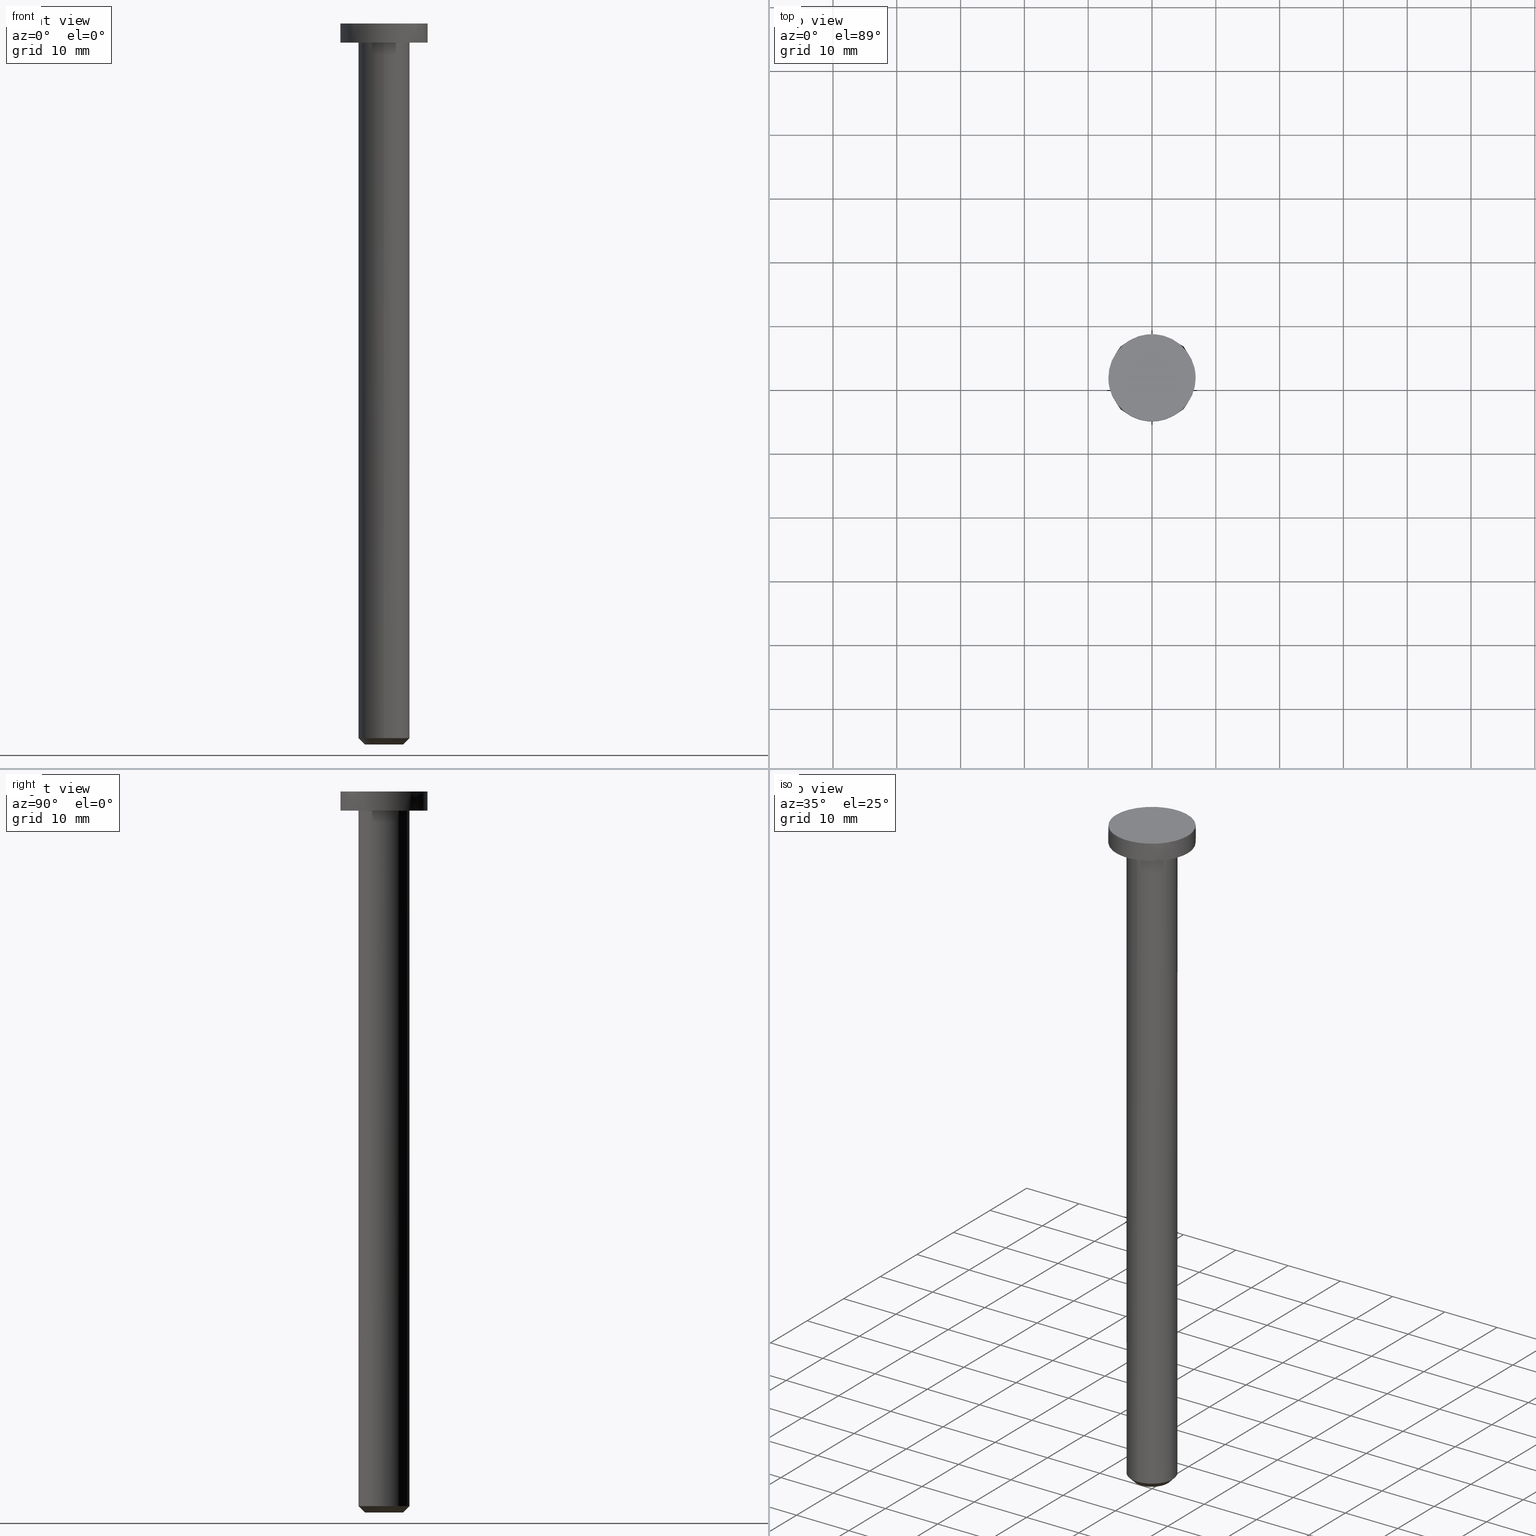
[diagram: canonical four-view strip — front | top / right | iso, engineering-drawing reading convention]
A machine part, canonical four-view strip (front | top / right | iso — engineering-drawing reading convention). The complete STEP part file that produces these views, byte-faithful:
ISO-10303-21;
HEADER;
/****************************************************************
 * Generated by software with PDE/Lib inside                    *
 * PDElib Version 4.4.1-0003, patched  Thursday August 19 11:58 *
 * International Technegroup Inc. (www.iti-oh.com)              *
 ****************************************************************/
FILE_DESCRIPTION((''),'2;1');
FILE_NAME('','2005-04-20T08:42:09',(''),(''),'','CADfix','');
FILE_SCHEMA(('AUTOMOTIVE_DESIGN'));
ENDSEC;
DATA;
#5=APPLICATION_CONTEXT('automotive design');
#6=APPLICATION_PROTOCOL_DEFINITION('Draft International Standard','automotive_design',1998,#5);
#7=PRODUCT_CONTEXT('None',#5,'mechanical');
#8=PRODUCT('shaft','','None',(#7));
#9=PRODUCT_RELATED_PRODUCT_CATEGORY('part','description',(#8));
#10=PRODUCT_DEFINITION_FORMATION('None','None',#8);
#11=PRODUCT_DEFINITION_CONTEXT('part definition',#5,'design');
#12=PRODUCT_DEFINITION('None','None',#10,#11);
#18=(NAMED_UNIT(*)PLANE_ANGLE_UNIT()SI_UNIT($,.RADIAN.));
#19=DIMENSIONAL_EXPONENTS(0.0,0.0,0.0,0.0,0.0,0.0,0.0);
#20=PLANE_ANGLE_MEASURE_WITH_UNIT(PLANE_ANGLE_MEASURE(0.017453292500000),#18);
#24=(CONVERSION_BASED_UNIT('DEGREE',#20)NAMED_UNIT(#19)PLANE_ANGLE_UNIT());
#28=(NAMED_UNIT(*)SI_UNIT($,.STERADIAN.)SOLID_ANGLE_UNIT());
#32=(LENGTH_UNIT()NAMED_UNIT(*)SI_UNIT(.MILLI.,.METRE.));
#34=UNCERTAINTY_MEASURE_WITH_UNIT(LENGTH_MEASURE(0.001000000000000),#32,'DISTANCE_ACCURACY_VALUE','');
#36=(GEOMETRIC_REPRESENTATION_CONTEXT(3)GLOBAL_UNCERTAINTY_ASSIGNED_CONTEXT((#34))GLOBAL_UNIT_ASSIGNED_CONTEXT((#24,#28,#32))REPRESENTATION_CONTEXT('None','None'));
#37=AXIS2_PLACEMENT_3D('',#38,#39,#40);
#38=CARTESIAN_POINT('',(0.0,0.0,0.0));
#39=DIRECTION('',(0.0,0.0,1.0));
#40=DIRECTION('',(1.0,0.0,0.0));
#41=ADVANCED_BREP_SHAPE_REPRESENTATION('',(#37,#544),#36);
#42=PRODUCT_DEFINITION_SHAPE('','',#12);
#43=SHAPE_DEFINITION_REPRESENTATION(#42,#41);
#44=CARTESIAN_POINT('',(-2.898299005706309,0.671183934195250,-0.025000000000000));
#45=CARTESIAN_POINT('',(-2.977968336595556,0.327156714922717,-0.025000000000000));
#46=CARTESIAN_POINT('',(-2.974886721115909,-0.025961443107662,-0.025000000000000));
#47=CARTESIAN_POINT('',(-2.948925278008246,-3.000848164223570,-0.025000000000000));
#48=CARTESIAN_POINT('',(0.025961443107662,-2.974886721115909,-0.025000000000000));
#49=CARTESIAN_POINT('',(3.000848164223570,-2.948925278008246,-0.025000000000000));
#50=CARTESIAN_POINT('',(2.974886721115909,0.025961443107662,-0.025000000000000));
#51=CARTESIAN_POINT('',(2.948925278008246,3.000848164223570,-0.025000000000000));
#52=CARTESIAN_POINT('',(-0.025961443107662,2.974886721115909,-0.025000000000000));
#53=CARTESIAN_POINT('',(-3.921836952889566,0.908213386586471,1.025625000000000));
#54=CARTESIAN_POINT('',(-4.029641608405877,0.442692521180088,1.025625000000000));
#55=CARTESIAN_POINT('',(-4.025471716535202,-0.035129759465641,1.025625000000000));
#56=CARTESIAN_POINT('',(-3.990341957069561,-4.060601476000842,1.025625000000000));
#57=CARTESIAN_POINT('',(0.035129759465641,-4.025471716535202,1.025625000000000));
#58=CARTESIAN_POINT('',(4.060601476000842,-3.990341957069561,1.025625000000000));
#59=CARTESIAN_POINT('',(4.025471716535202,0.035129759465641,1.025625000000000));
#60=CARTESIAN_POINT('',(3.990341957069561,4.060601476000842,1.025625000000000));
#61=CARTESIAN_POINT('',(-0.035129759465641,4.025471716535202,1.025625000000000));
#69=(BOUNDED_SURFACE()B_SPLINE_SURFACE(2,1,((#44,#53),(#45,#54),(#46,#55),(#47,#56),(#48,#57),(#49,#58),(#50,#59),(#51,#60),(#52,#61)),.UNSPECIFIED.,.F.,.F.,.U.)B_SPLINE_SURFACE_WITH_KNOTS((3,2,2,2,3),(2,2),(0.0,1.067179822098042,7.737053710210802,14.406927598323559,21.076801486436320),(0.0,1.0),.UNSPECIFIED.)GEOMETRIC_REPRESENTATION_ITEM()RATIONAL_B_SPLINE_SURFACE(((0.921270302782944,0.921270302782944),(0.953137084989848,0.953137084989848),(1.0,1.0),(0.707106781186548,0.707106781186548),(1.0,1.0),(0.707106781186548,0.707106781186548),(1.0,1.0),(0.707106781186548,0.707106781186548),(1.0,1.0)))REPRESENTATION_ITEM('')SURFACE());
#70=CARTESIAN_POINT('',(-3.896872612602162,0.902432181418461,1.000000000113562));
#71=VERTEX_POINT('',#70);
#72=CARTESIAN_POINT('',(-4.0,0.0,1.0));
#73=VERTEX_POINT('',#72);
#74=CARTESIAN_POINT('',(-3.896872612602162,0.902432181418461,1.000000000113562));
#75=CARTESIAN_POINT('',(-4.000000000000001,0.457108643719572,1.0));
#76=CARTESIAN_POINT('',(-4.0,0.0,1.0));
#84=(BOUNDED_CURVE()B_SPLINE_CURVE(2,(#74,#75,#76),.UNSPECIFIED.,.F.,.U.)B_SPLINE_CURVE_WITH_KNOTS((3,3),(0.961422971703980,1.0),.UNSPECIFIED.)CURVE()GEOMETRIC_REPRESENTATION_ITEM()RATIONAL_B_SPLINE_CURVE((0.923556557312165,0.954804200040484,1.0))REPRESENTATION_ITEM(''));
#85=EDGE_CURVE('',#71,#73,#84,.T.);
#86=ORIENTED_EDGE('',*,*,#85,.F.);
#87=CARTESIAN_POINT('',(-2.922654459445184,0.676824136111415,8.963145E-011));
#88=VERTEX_POINT('',#87);
#89=CARTESIAN_POINT('',(-2.922654459445184,0.676824136111415,8.963145E-011));
#90=CARTESIAN_POINT('',(-3.896872612602162,0.902432181418461,1.000000000113562));
#91=QUASI_UNIFORM_CURVE('',1,(#89,#90),.UNSPECIFIED.,.F.,.U.);
#92=EDGE_CURVE('',#88,#71,#91,.T.);
#93=ORIENTED_EDGE('',*,*,#92,.F.);
#94=CARTESIAN_POINT('',(-3.0,0.0,0.0));
#95=VERTEX_POINT('',#94);
#96=CARTESIAN_POINT('',(-3.0,0.0,0.0));
#97=CARTESIAN_POINT('',(-3.0,0.342831482838098,0.0));
#98=CARTESIAN_POINT('',(-2.922654459445184,0.676824136111415,8.963145E-011));
#106=(BOUNDED_CURVE()B_SPLINE_CURVE(2,(#96,#97,#98),.UNSPECIFIED.,.F.,.U.)B_SPLINE_CURVE_WITH_KNOTS((3,3),(0.0,0.038577028301222),.UNSPECIFIED.)CURVE()GEOMETRIC_REPRESENTATION_ITEM()RATIONAL_B_SPLINE_CURVE((1.0,0.954804200034390,0.923556557303737))REPRESENTATION_ITEM(''));
#107=EDGE_CURVE('',#95,#88,#106,.T.);
#108=ORIENTED_EDGE('',*,*,#107,.F.);
#109=CARTESIAN_POINT('',(3.0,0.0,0.0));
#110=VERTEX_POINT('',#109);
#111=CARTESIAN_POINT('',(3.0,0.0,0.0));
#112=CARTESIAN_POINT('',(3.0,-3.0,0.0));
#113=CARTESIAN_POINT('',(0.0,-3.0,0.0));
#114=CARTESIAN_POINT('',(-3.0,-3.0,0.0));
#115=CARTESIAN_POINT('',(-3.0,0.0,0.0));
#123=(BOUNDED_CURVE()B_SPLINE_CURVE(2,(#111,#112,#113,#114,#115),.UNSPECIFIED.,.F.,.U.)B_SPLINE_CURVE_WITH_KNOTS((3,2,3),(0.500000000000000,0.750000000000000,1.0),.UNSPECIFIED.)CURVE()GEOMETRIC_REPRESENTATION_ITEM()RATIONAL_B_SPLINE_CURVE((1.0,0.707106781186548,1.0,0.707106781186548,1.0))REPRESENTATION_ITEM(''));
#124=EDGE_CURVE('',#110,#95,#123,.T.);
#125=ORIENTED_EDGE('',*,*,#124,.F.);
#126=CARTESIAN_POINT('',(-0.026179607981349,2.999885769381246,2.016954E-010));
#127=VERTEX_POINT('',#126);
#128=CARTESIAN_POINT('',(-0.026179607981348,2.999885769381246,2.016954E-010));
#129=CARTESIAN_POINT('',(-0.013090053946656,3.000000000000000,0.0));
#130=CARTESIAN_POINT('',(0.0,3.0,0.0));
#131=CARTESIAN_POINT('',(3.0,3.0,0.0));
#132=CARTESIAN_POINT('',(3.0,0.0,0.0));
#140=(BOUNDED_CURVE()B_SPLINE_CURVE(2,(#128,#129,#130,#131,#132),.UNSPECIFIED.,.F.,.U.)B_SPLINE_CURVE_WITH_KNOTS((3,2,3),(0.248460105490688,0.250000000000000,0.500000000000000),.UNSPECIFIED.)CURVE()GEOMETRIC_REPRESENTATION_ITEM()RATIONAL_B_SPLINE_CURVE((0.996414027696968,0.998195901362137,1.0,0.707106781186548,1.0))REPRESENTATION_ITEM(''));
#141=EDGE_CURVE('',#127,#110,#140,.T.);
#142=ORIENTED_EDGE('',*,*,#141,.F.);
#143=CARTESIAN_POINT('',(-0.034906143808473,3.999847692487240,1.000000000246385));
#144=VERTEX_POINT('',#143);
#145=CARTESIAN_POINT('',(-0.026179607981349,2.999885769381246,2.016954E-010));
#146=CARTESIAN_POINT('',(-0.034906143808473,3.999847692487240,1.000000000246385));
#147=QUASI_UNIFORM_CURVE('',1,(#145,#146),.UNSPECIFIED.,.F.,.U.);
#148=EDGE_CURVE('',#127,#144,#147,.T.);
#149=ORIENTED_EDGE('',*,*,#148,.T.);
#150=CARTESIAN_POINT('',(0.496512008596728,3.969064855267452,1.0));
#151=VERTEX_POINT('',#150);
#152=CARTESIAN_POINT('',(0.496512008596728,3.969064855267452,1.0));
#153=CARTESIAN_POINT('',(0.249219710414635,4.000000000000001,1.0));
#154=CARTESIAN_POINT('',(0.0,4.0,1.0));
#155=CARTESIAN_POINT('',(-0.017453405095732,4.0,1.0));
#156=CARTESIAN_POINT('',(-0.034906143808473,3.999847692487240,1.000000000246385));
#164=(BOUNDED_CURVE()B_SPLINE_CURVE(2,(#152,#153,#154,#155,#156),.UNSPECIFIED.,.F.,.U.)B_SPLINE_CURVE_WITH_KNOTS((3,2,3),(0.728526071005724,0.750000000000000,0.751539894494651),.UNSPECIFIED.)CURVE()GEOMETRIC_REPRESENTATION_ITEM()RATIONAL_B_SPLINE_CURVE((0.954005430228970,0.974841727265180,1.0,0.998195901379314,0.996414027730899))REPRESENTATION_ITEM(''));
#165=EDGE_CURVE('',#151,#144,#164,.T.);
#166=ORIENTED_EDGE('',*,*,#165,.F.);
#167=CARTESIAN_POINT('',(4.0,0.0,1.0));
#168=VERTEX_POINT('',#167);
#169=CARTESIAN_POINT('',(4.0,0.0,1.0));
#170=CARTESIAN_POINT('',(4.0,3.530794400103492,1.0));
#171=CARTESIAN_POINT('',(0.496512008596728,3.969064855267452,1.0));
#179=(BOUNDED_CURVE()B_SPLINE_CURVE(2,(#169,#170,#171),.UNSPECIFIED.,.F.,.U.)B_SPLINE_CURVE_WITH_KNOTS((3,3),(0.500000000000000,0.728526071005724),.UNSPECIFIED.)CURVE()GEOMETRIC_REPRESENTATION_ITEM()RATIONAL_B_SPLINE_CURVE((1.0,0.732265053921368,0.954005430228968))REPRESENTATION_ITEM(''));
#180=EDGE_CURVE('',#168,#151,#179,.T.);
#181=ORIENTED_EDGE('',*,*,#180,.F.);
#182=CARTESIAN_POINT('',(-0.034906142388283,-3.999847692253240,1.000000000000000));
#183=VERTEX_POINT('',#182);
#184=CARTESIAN_POINT('',(-0.034906142388283,-3.999847692253239,1.000000000000000));
#185=CARTESIAN_POINT('',(-0.017453403677616,-4.0,1.0));
#186=CARTESIAN_POINT('',(0.0,-4.0,1.0));
#187=CARTESIAN_POINT('',(4.000000000000000,-4.000000000000000,1.0));
#188=CARTESIAN_POINT('',(4.0,0.0,1.0));
#196=(BOUNDED_CURVE()B_SPLINE_CURVE(2,(#184,#185,#186,#187,#188),.UNSPECIFIED.,.F.,.U.)B_SPLINE_CURVE_WITH_KNOTS((3,2,3),(0.248460105630242,0.250000000000000,0.500000000000000),.UNSPECIFIED.)CURVE()GEOMETRIC_REPRESENTATION_ITEM()RATIONAL_B_SPLINE_CURVE((0.996414028019936,0.998195901525636,1.0,0.707106781186548,1.0))REPRESENTATION_ITEM(''));
#197=EDGE_CURVE('',#183,#168,#196,.T.);
#198=ORIENTED_EDGE('',*,*,#197,.F.);
#199=CARTESIAN_POINT('',(-4.0,0.0,1.0));
#200=CARTESIAN_POINT('',(-4.0,-3.965244841597140,1.0));
#201=CARTESIAN_POINT('',(-0.034906142388283,-3.999847692253239,1.000000000000000));
#209=(BOUNDED_CURVE()B_SPLINE_CURVE(2,(#199,#200,#201),.UNSPECIFIED.,.F.,.U.)B_SPLINE_CURVE_WITH_KNOTS((3,3),(0.0,0.248460105630242),.UNSPECIFIED.)CURVE()GEOMETRIC_REPRESENTATION_ITEM()RATIONAL_B_SPLINE_CURVE((1.0,0.708910879660912,0.996414028019936))REPRESENTATION_ITEM(''));
#210=EDGE_CURVE('',#73,#183,#209,.T.);
#211=ORIENTED_EDGE('',*,*,#210,.F.);
#212=EDGE_LOOP('',(#86,#93,#108,#125,#142,#149,#166,#181,#198,#211));
#213=FACE_OUTER_BOUND('',#212,.T.);
#214=ADVANCED_FACE('',(#213),#69,.T.);
#215=CARTESIAN_POINT('',(-0.025961443107662,2.974886721115909,-0.025000000000000));
#216=CARTESIAN_POINT('',(-2.369547094990188,2.954434558975612,-0.025000000000000));
#217=CARTESIAN_POINT('',(-2.898299005706309,0.671183934195250,-0.025000000000000));
#218=CARTESIAN_POINT('',(-0.035129759465641,4.025471716535202,1.025625000000000));
#219=CARTESIAN_POINT('',(-3.206355638410042,3.997796847555023,1.025625000000000));
#220=CARTESIAN_POINT('',(-3.921836952889566,0.908213386586471,1.025625000000000));
#228=(BOUNDED_SURFACE()B_SPLINE_SURFACE(2,1,((#215,#218),(#216,#219),(#217,#220)),.UNSPECIFIED.,.F.,.F.,.U.)B_SPLINE_SURFACE_WITH_KNOTS((3,3),(2,2),(0.0,5.578193160051423),(0.0,1.0),.UNSPECIFIED.)GEOMETRIC_REPRESENTATION_ITEM()RATIONAL_B_SPLINE_SURFACE(((1.0,1.0),(0.753969696196700,0.753969696196700),(0.921270302782944,0.921270302782944)))REPRESENTATION_ITEM('')SURFACE());
#229=CARTESIAN_POINT('',(-0.034906143808473,3.999847692487240,1.000000000246385));
#230=CARTESIAN_POINT('',(-3.185945672998599,3.972348984009678,1.0));
#231=CARTESIAN_POINT('',(-3.896872612602162,0.902432181418461,1.000000000113562));
#239=(BOUNDED_CURVE()B_SPLINE_CURVE(2,(#229,#230,#231),.UNSPECIFIED.,.F.,.U.)B_SPLINE_CURVE_WITH_KNOTS((3,3),(0.751539894494651,0.961422971703981),.UNSPECIFIED.)CURVE()GEOMETRIC_REPRESENTATION_ITEM()RATIONAL_B_SPLINE_CURVE((0.996414027730898,0.753549905658436,0.923556557312166))REPRESENTATION_ITEM(''));
#240=EDGE_CURVE('',#144,#71,#239,.T.);
#241=ORIENTED_EDGE('',*,*,#240,.F.);
#242=ORIENTED_EDGE('',*,*,#148,.F.);
#243=CARTESIAN_POINT('',(-2.922654459445184,0.676824136111415,8.963145E-011));
#244=CARTESIAN_POINT('',(-2.389459254717129,2.979261737810817,0.0));
#245=CARTESIAN_POINT('',(-0.026179607981349,2.999885769381246,2.016954E-010));
#253=(BOUNDED_CURVE()B_SPLINE_CURVE(2,(#243,#244,#245),.UNSPECIFIED.,.F.,.U.)B_SPLINE_CURVE_WITH_KNOTS((3,3),(0.038577028301222,0.248460105490688),.UNSPECIFIED.)CURVE()GEOMETRIC_REPRESENTATION_ITEM()RATIONAL_B_SPLINE_CURVE((0.923556557303737,0.753549905676332,0.996414027696968))REPRESENTATION_ITEM(''));
#254=EDGE_CURVE('',#88,#127,#253,.T.);
#255=ORIENTED_EDGE('',*,*,#254,.F.);
#256=ORIENTED_EDGE('',*,*,#92,.T.);
#257=EDGE_LOOP('',(#241,#242,#255,#256));
#258=FACE_OUTER_BOUND('',#257,.T.);
#259=ADVANCED_FACE('',(#258),#228,.T.);
#260=CARTESIAN_POINT('',(0.496512008319317,3.969064855302155,112.725000000000070));
#261=CARTESIAN_POINT('',(4.030931322009780,3.526925032532884,112.725000000000020));
#262=CARTESIAN_POINT('',(3.999847692256684,-0.034906141993496,112.724999999999990));
#263=CARTESIAN_POINT('',(3.964941550263188,-4.034753834250179,112.725000000000020));
#264=CARTESIAN_POINT('',(-0.034906141993496,-3.999847692256684,112.724999999999990));
#265=CARTESIAN_POINT('',(0.496512008319317,3.969064855302155,-1.793125000000003));
#266=CARTESIAN_POINT('',(4.030931322009780,3.526925032532884,-1.793125000000004));
#267=CARTESIAN_POINT('',(3.999847692256684,-0.034906141993496,-1.793125000000003));
#268=CARTESIAN_POINT('',(3.964941550263188,-4.034753834250179,-1.793125000000004));
#269=CARTESIAN_POINT('',(-0.034906141993496,-3.999847692256684,-1.793125000000003));
#277=(BOUNDED_SURFACE()B_SPLINE_SURFACE(2,1,((#260,#265),(#261,#266),(#262,#267),(#263,#268),(#264,#269)),.UNSPECIFIED.,.F.,.F.,.U.)B_SPLINE_SURFACE_WITH_KNOTS((3,2,3),(2,2),(0.0,6.097223638131957,12.724640636101480),(0.0,114.518125000000000),.UNSPECIFIED.)GEOMETRIC_REPRESENTATION_ITEM()RATIONAL_B_SPLINE_SURFACE(((0.956886118190660,0.956886118190660),(0.730538238691624,0.730538238691624),(1.0,1.0),(0.707106781186548,0.707106781186548),(1.0,1.0)))REPRESENTATION_ITEM('')SURFACE());
#278=CARTESIAN_POINT('',(0.496512008573829,3.969064855270316,110.0));
#279=VERTEX_POINT('',#278);
#280=CARTESIAN_POINT('',(4.0,0.0,110.0));
#281=VERTEX_POINT('',#280);
#282=CARTESIAN_POINT('',(0.496512008573829,3.969064855270316,110.0));
#283=CARTESIAN_POINT('',(4.000000000000000,3.530794400144569,110.0));
#284=CARTESIAN_POINT('',(4.0,0.0,110.0));
#292=(BOUNDED_CURVE()B_SPLINE_CURVE(2,(#282,#283,#284),.UNSPECIFIED.,.F.,.U.)B_SPLINE_CURVE_WITH_KNOTS((3,3),(0.271473928992330,0.500000000000000),.UNSPECIFIED.)CURVE()GEOMETRIC_REPRESENTATION_ITEM()RATIONAL_B_SPLINE_CURVE((0.954005430232746,0.732265053919087,1.0))REPRESENTATION_ITEM(''));
#293=EDGE_CURVE('',#279,#281,#292,.T.);
#294=ORIENTED_EDGE('',*,*,#293,.T.);
#295=CARTESIAN_POINT('',(-0.034906142421084,-3.999847692252953,110.0));
#296=VERTEX_POINT('',#295);
#297=CARTESIAN_POINT('',(4.0,0.0,110.0));
#298=CARTESIAN_POINT('',(4.000000000000000,-4.000000000000000,110.0));
#299=CARTESIAN_POINT('',(0.0,-4.0,110.0));
#300=CARTESIAN_POINT('',(-0.017453403710428,-4.0,110.0));
#301=CARTESIAN_POINT('',(-0.034906142421084,-3.999847692252954,110.000000000000040));
#309=(BOUNDED_CURVE()B_SPLINE_CURVE(2,(#297,#298,#299,#300,#301),.UNSPECIFIED.,.F.,.U.)B_SPLINE_CURVE_WITH_KNOTS((3,2,3),(0.500000000000000,0.750000000000000,0.751539894372648),.UNSPECIFIED.)CURVE()GEOMETRIC_REPRESENTATION_ITEM()RATIONAL_B_SPLINE_CURVE((1.0,0.707106781186548,1.0,0.998195901522250,0.996414028013249))REPRESENTATION_ITEM(''));
#310=EDGE_CURVE('',#281,#296,#309,.T.);
#311=ORIENTED_EDGE('',*,*,#310,.T.);
#312=CARTESIAN_POINT('',(-0.034906142421084,-3.999847692252953,110.0));
#313=CARTESIAN_POINT('',(-0.034906142388283,-3.999847692253240,1.000000000000000));
#314=QUASI_UNIFORM_CURVE('',1,(#312,#313),.UNSPECIFIED.,.F.,.U.);
#315=EDGE_CURVE('',#296,#183,#314,.T.);
#316=ORIENTED_EDGE('',*,*,#315,.T.);
#317=ORIENTED_EDGE('',*,*,#197,.T.);
#318=ORIENTED_EDGE('',*,*,#180,.T.);
#319=CARTESIAN_POINT('',(0.496512008573829,3.969064855270316,110.0));
#320=CARTESIAN_POINT('',(0.496512008596728,3.969064855267452,1.0));
#321=QUASI_UNIFORM_CURVE('',1,(#319,#320),.UNSPECIFIED.,.F.,.U.);
#322=EDGE_CURVE('',#279,#151,#321,.T.);
#323=ORIENTED_EDGE('',*,*,#322,.F.);
#324=EDGE_LOOP('',(#294,#311,#316,#317,#318,#323));
#325=FACE_OUTER_BOUND('',#324,.T.);
#326=ADVANCED_FACE('',(#325),#277,.T.);
#327=CARTESIAN_POINT('',(-0.034906141993496,-3.999847692256684,112.724999999999990));
#328=CARTESIAN_POINT('',(-4.034753834250179,-3.964941550263188,112.725000000000020));
#329=CARTESIAN_POINT('',(-3.999847692256684,0.034906141993496,112.724999999999990));
#330=CARTESIAN_POINT('',(-3.964941550263188,4.034753834250179,112.725000000000020));
#331=CARTESIAN_POINT('',(0.034906141993496,3.999847692256684,112.724999999999990));
#332=CARTESIAN_POINT('',(0.266600635832694,3.997825725041103,112.725000000000010));
#333=CARTESIAN_POINT('',(0.496512008319317,3.969064855302155,112.725000000000070));
#334=CARTESIAN_POINT('',(-0.034906141993496,-3.999847692256684,-1.793125000000003));
#335=CARTESIAN_POINT('',(-4.034753834250179,-3.964941550263188,-1.793125000000004));
#336=CARTESIAN_POINT('',(-3.999847692256684,0.034906141993496,-1.793125000000003));
#337=CARTESIAN_POINT('',(-3.964941550263188,4.034753834250179,-1.793125000000004));
#338=CARTESIAN_POINT('',(0.034906141993496,3.999847692256684,-1.793125000000003));
#339=CARTESIAN_POINT('',(0.266600635832694,3.997825725041103,-1.793125000000004));
#340=CARTESIAN_POINT('',(0.496512008319317,3.969064855302155,-1.793125000000003));
#348=(BOUNDED_SURFACE()B_SPLINE_SURFACE(2,1,((#327,#334),(#328,#335),(#329,#336),(#330,#337),(#331,#338),(#332,#339),(#333,#340)),.UNSPECIFIED.,.F.,.F.,.U.)B_SPLINE_SURFACE_WITH_KNOTS((3,2,2,3),(2,2),(0.0,6.627416997969519,13.254833995939039,13.785027355776601),(0.0,114.518125000000000),.UNSPECIFIED.)GEOMETRIC_REPRESENTATION_ITEM()RATIONAL_B_SPLINE_SURFACE(((1.0,1.0),(0.707106781186548,0.707106781186548),(1.0,1.0),(0.707106781186548,0.707106781186548),(1.0,1.0),(0.976568542494924,0.976568542494924),(0.956886118190660,0.956886118190660)))REPRESENTATION_ITEM('')SURFACE());
#349=CARTESIAN_POINT('',(-4.0,0.0,110.0));
#350=VERTEX_POINT('',#349);
#351=CARTESIAN_POINT('',(-4.0,0.0,110.0));
#352=CARTESIAN_POINT('',(-4.000000000000000,4.000000000000000,110.0));
#353=CARTESIAN_POINT('',(0.0,4.0,110.0));
#354=CARTESIAN_POINT('',(0.249219710391468,4.0,109.999999999999970));
#355=CARTESIAN_POINT('',(0.496512008573829,3.969064855270316,110.0));
#363=(BOUNDED_CURVE()B_SPLINE_CURVE(2,(#351,#352,#353,#354,#355),.UNSPECIFIED.,.F.,.U.)B_SPLINE_CURVE_WITH_KNOTS((3,2,3),(0.0,0.250000000000000,0.271473928992330),.UNSPECIFIED.)CURVE()GEOMETRIC_REPRESENTATION_ITEM()RATIONAL_B_SPLINE_CURVE((1.0,0.707106781186548,1.0,0.974841727267460,0.954005430232746))REPRESENTATION_ITEM(''));
#364=EDGE_CURVE('',#350,#279,#363,.T.);
#365=ORIENTED_EDGE('',*,*,#364,.T.);
#366=ORIENTED_EDGE('',*,*,#322,.T.);
#367=ORIENTED_EDGE('',*,*,#165,.T.);
#368=ORIENTED_EDGE('',*,*,#240,.T.);
#369=ORIENTED_EDGE('',*,*,#85,.T.);
#370=ORIENTED_EDGE('',*,*,#210,.T.);
#371=ORIENTED_EDGE('',*,*,#315,.F.);
#372=CARTESIAN_POINT('',(-0.034906142421084,-3.999847692252954,110.000000000000040));
#373=CARTESIAN_POINT('',(-4.000000000000001,-3.965244841532100,109.999999999999990));
#374=CARTESIAN_POINT('',(-4.0,0.0,110.0));
#382=(BOUNDED_CURVE()B_SPLINE_CURVE(2,(#372,#373,#374),.UNSPECIFIED.,.F.,.U.)B_SPLINE_CURVE_WITH_KNOTS((3,3),(0.751539894372647,1.0),.UNSPECIFIED.)CURVE()GEOMETRIC_REPRESENTATION_ITEM()RATIONAL_B_SPLINE_CURVE((0.996414028013251,0.708910879664297,1.0))REPRESENTATION_ITEM(''));
#383=EDGE_CURVE('',#296,#350,#382,.T.);
#384=ORIENTED_EDGE('',*,*,#383,.T.);
#385=EDGE_LOOP('',(#365,#366,#367,#368,#369,#370,#371,#384));
#386=FACE_OUTER_BOUND('',#385,.T.);
#387=ADVANCED_FACE('',(#386),#348,.T.);
#388=CARTESIAN_POINT('',(-7.520453119272260,-7.520453119272164,112.999999993067210));
#389=CARTESIAN_POINT('',(7.520453486058826,-7.520453119272164,112.999999993067210));
#390=CARTESIAN_POINT('',(-7.520453119272260,7.520453486058730,112.999999993067210));
#391=CARTESIAN_POINT('',(7.520453486058826,7.520453486058730,112.999999993067210));
#392=B_SPLINE_SURFACE_WITH_KNOTS('',1,1,((#388,#390),(#389,#391)),.UNSPECIFIED.,.F.,.F.,.U.,(2,2),(2,2),(0.0,15.040906605331079),(0.0,15.040906605330891),.UNSPECIFIED.);
#393=CARTESIAN_POINT('',(6.837397168630480,0.0,112.999999986134600));
#394=VERTEX_POINT('',#393);
#395=CARTESIAN_POINT('',(-6.837397168630480,0.0,112.999999986134600));
#396=VERTEX_POINT('',#395);
#397=CARTESIAN_POINT('',(6.837397168630480,0.0,112.999999986134600));
#398=CARTESIAN_POINT('',(6.837397168630479,-6.837397168630479,112.999999986134600));
#399=CARTESIAN_POINT('',(0.0,-6.837397168630480,112.999999986134600));
#400=CARTESIAN_POINT('',(-6.837397168630479,-6.837397168630479,112.999999986134600));
#401=CARTESIAN_POINT('',(-6.837397168630480,0.0,112.999999986134600));
#409=(BOUNDED_CURVE()B_SPLINE_CURVE(2,(#397,#398,#399,#400,#401),.UNSPECIFIED.,.F.,.U.)B_SPLINE_CURVE_WITH_KNOTS((3,2,3),(0.500000000000000,0.750000000000000,1.0),.UNSPECIFIED.)CURVE()GEOMETRIC_REPRESENTATION_ITEM()RATIONAL_B_SPLINE_CURVE((1.0,0.707106781186548,1.0,0.707106781186548,1.0))REPRESENTATION_ITEM(''));
#410=EDGE_CURVE('',#394,#396,#409,.T.);
#411=ORIENTED_EDGE('',*,*,#410,.F.);
#412=CARTESIAN_POINT('',(-6.837397168630480,0.0,112.999999986134600));
#413=CARTESIAN_POINT('',(-6.837397168630479,6.837397168630479,112.999999986134600));
#414=CARTESIAN_POINT('',(0.0,6.837397168630480,112.999999986134600));
#415=CARTESIAN_POINT('',(6.837397168630479,6.837397168630479,112.999999986134600));
#416=CARTESIAN_POINT('',(6.837397168630480,0.0,112.999999986134600));
#424=(BOUNDED_CURVE()B_SPLINE_CURVE(2,(#412,#413,#414,#415,#416),.UNSPECIFIED.,.F.,.U.)B_SPLINE_CURVE_WITH_KNOTS((3,2,3),(0.0,0.250000000000000,0.500000000000000),.UNSPECIFIED.)CURVE()GEOMETRIC_REPRESENTATION_ITEM()RATIONAL_B_SPLINE_CURVE((1.0,0.707106781186548,1.0,0.707106781186548,1.0))REPRESENTATION_ITEM(''));
#425=EDGE_CURVE('',#396,#394,#424,.T.);
#426=ORIENTED_EDGE('',*,*,#425,.F.);
#427=EDGE_LOOP('',(#411,#426));
#428=FACE_OUTER_BOUND('',#427,.T.);
#429=ADVANCED_FACE('',(#428),#392,.T.);
#430=CARTESIAN_POINT('',(-4.166826270854390,4.166826270854393,115.278242667833200));
#431=CARTESIAN_POINT('',(-3.869966885417784,5.159955847223715,114.510362682809610));
#432=CARTESIAN_POINT('',(-1.693658976456551,6.774635905826205,113.261904748699620));
#433=CARTESIAN_POINT('',(1.693658976456551,6.774635905826205,113.261904748699620));
#434=CARTESIAN_POINT('',(3.869966885417784,5.159955847223715,114.510362682809610));
#435=CARTESIAN_POINT('',(4.166826270854390,4.166826270854393,115.278242667833200));
#436=CARTESIAN_POINT('',(-5.159955847223713,3.869966885417787,114.510362682809610));
#437=CARTESIAN_POINT('',(-5.080976929369654,5.080976929369654,113.261904748699620));
#438=CARTESIAN_POINT('',(-2.465028409586338,7.395085228759013,110.876237609775980));
#439=CARTESIAN_POINT('',(2.465028409586338,7.395085228759013,110.876237609775980));
#440=CARTESIAN_POINT('',(5.080976929369654,5.080976929369654,113.261904748699620));
#441=CARTESIAN_POINT('',(5.159955847223713,3.869966885417787,114.510362682809610));
#442=CARTESIAN_POINT('',(-6.774635905826205,1.693658976456553,113.261904748699620));
#443=CARTESIAN_POINT('',(-7.395085228759013,2.465028409586338,110.876237609775980));
#444=CARTESIAN_POINT('',(-4.526688525663090,4.526688525663084,104.500000000000000));
#445=CARTESIAN_POINT('',(4.526688525663090,4.526688525663084,104.500000000000000));
#446=CARTESIAN_POINT('',(7.395085228759013,2.465028409586338,110.876237609775980));
#447=CARTESIAN_POINT('',(6.774635905826205,1.693658976456553,113.261904748699620));
#448=CARTESIAN_POINT('',(-6.774635905826205,-1.693658976456550,113.261904748699620));
#449=CARTESIAN_POINT('',(-7.395085228759013,-2.465028409586338,110.876237609775980));
#450=CARTESIAN_POINT('',(-4.526688525663090,-4.526688525663096,104.500000000000000));
#451=CARTESIAN_POINT('',(4.526688525663090,-4.526688525663096,104.500000000000000));
#452=CARTESIAN_POINT('',(7.395085228759013,-2.465028409586338,110.876237609775980));
#453=CARTESIAN_POINT('',(6.774635905826205,-1.693658976456550,113.261904748699620));
#454=CARTESIAN_POINT('',(-5.159955847223713,-3.869966885417781,114.510362682809610));
#455=CARTESIAN_POINT('',(-5.080976929369654,-5.080976929369654,113.261904748699620));
#456=CARTESIAN_POINT('',(-2.465028409586338,-7.395085228759013,110.876237609776040));
#457=CARTESIAN_POINT('',(2.465028409586338,-7.395085228759013,110.876237609776040));
#458=CARTESIAN_POINT('',(5.080976929369654,-5.080976929369654,113.261904748699620));
#459=CARTESIAN_POINT('',(5.159955847223713,-3.869966885417781,114.510362682809610));
#460=CARTESIAN_POINT('',(-4.166826270854390,-4.166826270854387,115.278242667833230));
#461=CARTESIAN_POINT('',(-3.869966885417784,-5.159955847223709,114.510362682809610));
#462=CARTESIAN_POINT('',(-1.693658976456551,-6.774635905826205,113.261904748699620));
#463=CARTESIAN_POINT('',(1.693658976456551,-6.774635905826205,113.261904748699620));
#464=CARTESIAN_POINT('',(3.869966885417784,-5.159955847223709,114.510362682809610));
#465=CARTESIAN_POINT('',(4.166826270854390,-4.166826270854387,115.278242667833230));
#473=(BOUNDED_SURFACE()B_SPLINE_SURFACE(2,2,((#430,#436,#442,#448,#454,#460),(#431,#437,#443,#449,#455,#461),(#432,#438,#444,#450,#456,#462),(#433,#439,#445,#451,#457,#463),(#434,#440,#446,#452,#458,#464),(#435,#441,#447,#453,#459,#465)),.UNSPECIFIED.,.F.,.F.,.U.)B_SPLINE_SURFACE_WITH_KNOTS((3,1,1,1,3),(3,1,1,1,3),(0.0,7.487755461199946,14.975510922399890,22.463266383599841,29.951021844799779),(0.0,7.487755461199944,14.975510922399890,22.463266383599830,29.951021844799779),.UNSPECIFIED.)GEOMETRIC_REPRESENTATION_ITEM()RATIONAL_B_SPLINE_SURFACE(((4.345454531978759,3.509090898984069,2.672727265989380,2.672727265989380,3.509090898984069,4.345454531978759),(3.509090898984069,2.672727265989380,1.836363632994690,1.836363632994690,2.672727265989380,3.509090898984069),(2.672727265989380,1.836363632994690,1.0,1.0,1.836363632994690,2.672727265989380),(2.672727265989380,1.836363632994690,1.0,1.0,1.836363632994690,2.672727265989380),(3.509090898984069,2.672727265989380,1.836363632994690,1.836363632994690,2.672727265989380,3.509090898984069),(4.345454531978759,3.509090898984069,2.672727265989380,2.672727265989380,3.509090898984069,4.345454531978759)))REPRESENTATION_ITEM('')SURFACE());
#474=CARTESIAN_POINT('',(-6.837397165588650,0.0,110.0));
#475=VERTEX_POINT('',#474);
#476=CARTESIAN_POINT('',(6.837397165588650,0.0,110.0));
#477=VERTEX_POINT('',#476);
#478=CARTESIAN_POINT('',(-6.837397165588650,0.0,110.0));
#479=CARTESIAN_POINT('',(-6.837397165588650,6.837397165588650,110.0));
#480=CARTESIAN_POINT('',(0.0,6.837397165588650,110.0));
#481=CARTESIAN_POINT('',(6.837397165588650,6.837397165588650,110.0));
#482=CARTESIAN_POINT('',(6.837397165588650,0.0,110.0));
#490=(BOUNDED_CURVE()B_SPLINE_CURVE(2,(#478,#479,#480,#481,#482),.UNSPECIFIED.,.F.,.U.)B_SPLINE_CURVE_WITH_KNOTS((3,2,3),(0.0,0.250000000000000,0.500000000000000),.UNSPECIFIED.)CURVE()GEOMETRIC_REPRESENTATION_ITEM()RATIONAL_B_SPLINE_CURVE((1.0,0.707106781186548,1.0,0.707106781186548,1.0))REPRESENTATION_ITEM(''));
#491=EDGE_CURVE('',#475,#477,#490,.T.);
#492=ORIENTED_EDGE('',*,*,#491,.F.);
#493=CARTESIAN_POINT('',(6.837397165588650,0.0,110.0));
#494=CARTESIAN_POINT('',(6.837397165588650,-6.837397165588650,110.0));
#495=CARTESIAN_POINT('',(0.0,-6.837397165588650,110.0));
#496=CARTESIAN_POINT('',(-6.837397165588650,-6.837397165588650,110.0));
#497=CARTESIAN_POINT('',(-6.837397165588650,0.0,110.0));
#505=(BOUNDED_CURVE()B_SPLINE_CURVE(2,(#493,#494,#495,#496,#497),.UNSPECIFIED.,.F.,.U.)B_SPLINE_CURVE_WITH_KNOTS((3,2,3),(0.500000000000000,0.750000000000000,1.0),.UNSPECIFIED.)CURVE()GEOMETRIC_REPRESENTATION_ITEM()RATIONAL_B_SPLINE_CURVE((1.0,0.707106781186548,1.0,0.707106781186548,1.0))REPRESENTATION_ITEM(''));
#506=EDGE_CURVE('',#477,#475,#505,.T.);
#507=ORIENTED_EDGE('',*,*,#506,.F.);
#508=EDGE_LOOP('',(#492,#507));
#509=FACE_OUTER_BOUND('',#508,.T.);
#510=ORIENTED_EDGE('',*,*,#425,.T.);
#511=ORIENTED_EDGE('',*,*,#410,.T.);
#512=EDGE_LOOP('',(#510,#511));
#513=FACE_BOUND('',#512,.T.);
#514=ADVANCED_FACE('',(#509,#513),#473,.T.);
#515=CARTESIAN_POINT('',(7.520453115926550,-7.520453115926456,110.0));
#516=CARTESIAN_POINT('',(-7.520453482713117,-7.520453115926456,110.0));
#517=CARTESIAN_POINT('',(7.520453115926550,7.520453482713022,110.0));
#518=CARTESIAN_POINT('',(-7.520453482713117,7.520453482713022,110.0));
#519=B_SPLINE_SURFACE_WITH_KNOTS('',1,1,((#515,#517),(#516,#518)),.UNSPECIFIED.,.F.,.F.,.U.,(2,2),(2,2),(0.0,15.040906598639671),(0.0,15.040906598639481),.UNSPECIFIED.);
#520=ORIENTED_EDGE('',*,*,#491,.T.);
#521=ORIENTED_EDGE('',*,*,#506,.T.);
#522=EDGE_LOOP('',(#520,#521));
#523=FACE_OUTER_BOUND('',#522,.T.);
#524=ORIENTED_EDGE('',*,*,#310,.F.);
#525=ORIENTED_EDGE('',*,*,#293,.F.);
#526=ORIENTED_EDGE('',*,*,#364,.F.);
#527=ORIENTED_EDGE('',*,*,#383,.F.);
#528=EDGE_LOOP('',(#524,#525,#526,#527));
#529=FACE_BOUND('',#528,.T.);
#530=ADVANCED_FACE('',(#523,#529),#519,.T.);
#531=CARTESIAN_POINT('',(3.299699988370835,-3.299694286337300,0.0));
#532=CARTESIAN_POINT('',(-3.299700149303376,-3.299694286337300,0.0));
#533=CARTESIAN_POINT('',(3.299699988370835,3.299580292454167,0.0));
#534=CARTESIAN_POINT('',(-3.299700149303376,3.299580292454167,0.0));
#535=B_SPLINE_SURFACE_WITH_KNOTS('',1,1,((#531,#533),(#532,#534)),.UNSPECIFIED.,.F.,.F.,.U.,(2,2),(2,2),(0.0,6.599400137674212),(0.0,6.599274578791468),.UNSPECIFIED.);
#536=ORIENTED_EDGE('',*,*,#107,.T.);
#537=ORIENTED_EDGE('',*,*,#254,.T.);
#538=ORIENTED_EDGE('',*,*,#141,.T.);
#539=ORIENTED_EDGE('',*,*,#124,.T.);
#540=EDGE_LOOP('',(#536,#537,#538,#539));
#541=FACE_OUTER_BOUND('',#540,.T.);
#542=ADVANCED_FACE('',(#541),#535,.T.);
#543=CLOSED_SHELL('',(#214,#259,#326,#387,#429,#514,#530,#542));
#544=MANIFOLD_SOLID_BREP('shaft',#543);
#550=(NAMED_UNIT(*)PLANE_ANGLE_UNIT()SI_UNIT($,.RADIAN.));
#551=DIMENSIONAL_EXPONENTS(0.0,0.0,0.0,0.0,0.0,0.0,0.0);
#552=PLANE_ANGLE_MEASURE_WITH_UNIT(PLANE_ANGLE_MEASURE(0.017453292500000),#550);
#556=(CONVERSION_BASED_UNIT('DEGREE',#552)NAMED_UNIT(#551)PLANE_ANGLE_UNIT());
#560=(NAMED_UNIT(*)SI_UNIT($,.STERADIAN.)SOLID_ANGLE_UNIT());
#564=(LENGTH_UNIT()NAMED_UNIT(*)SI_UNIT(.MILLI.,.METRE.));
#566=UNCERTAINTY_MEASURE_WITH_UNIT(LENGTH_MEASURE(0.001000000000000),#564,'DISTANCE_ACCURACY_VALUE','');
#568=(GEOMETRIC_REPRESENTATION_CONTEXT(3)GLOBAL_UNCERTAINTY_ASSIGNED_CONTEXT((#566))GLOBAL_UNIT_ASSIGNED_CONTEXT((#556,#560,#564))REPRESENTATION_CONTEXT('','3D'));
ENDSEC;
END-ISO-10303-21;
